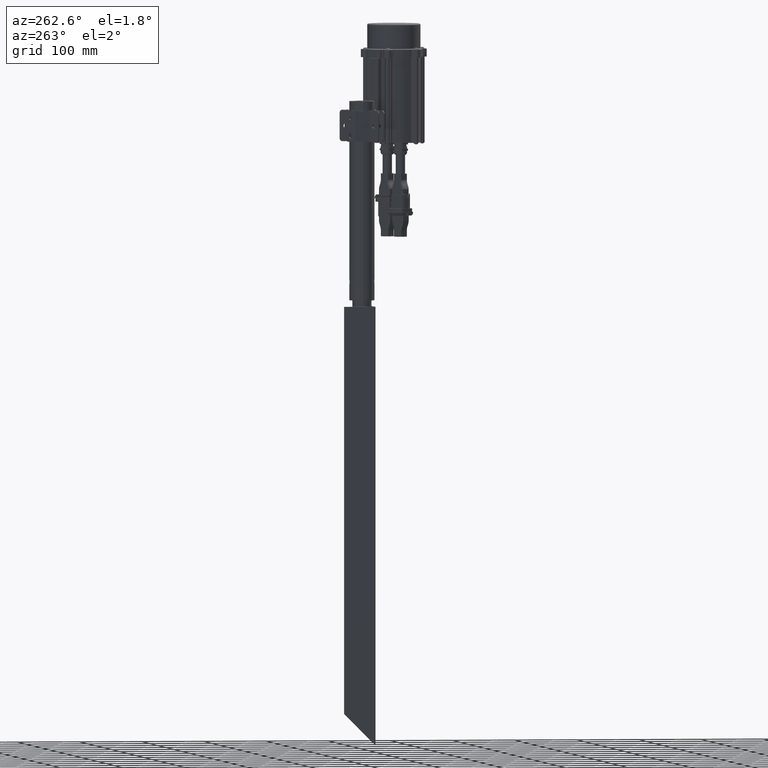
[diagram: clean part render]
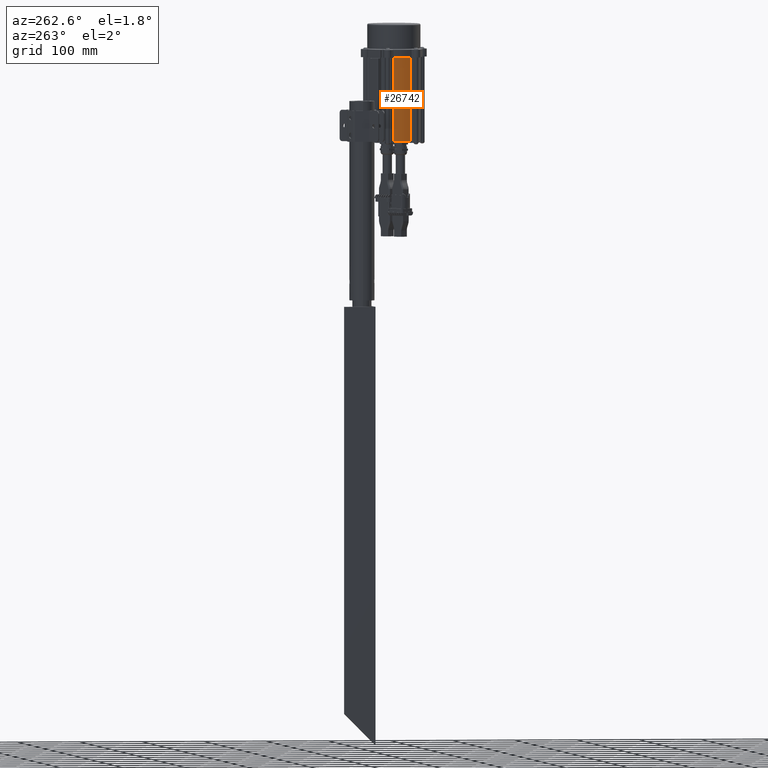
[diagram: same view with one face highlighted and labeled with its STEP entity id]
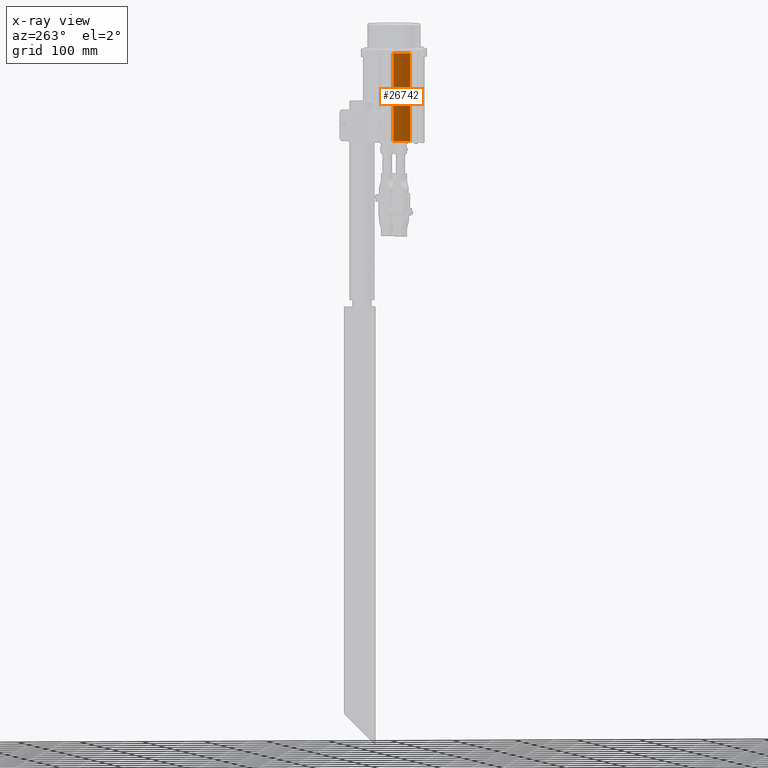
[diagram: x-ray of the same camera — body ghosted, the highlighted face saturated]
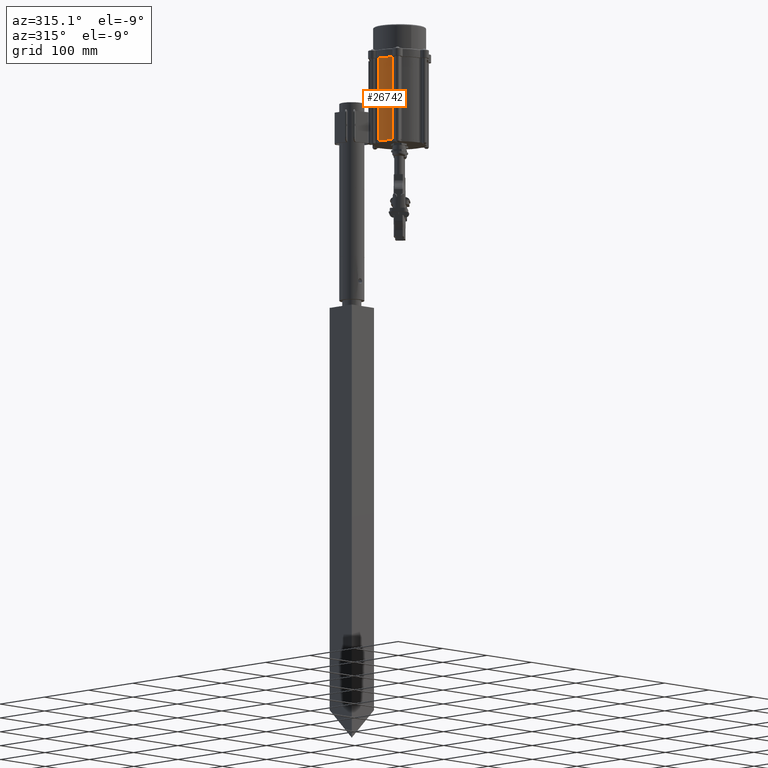
[diagram: same view with one face highlighted and labeled with its STEP entity id]
A machine part, auxiliary view. The second image highlights one B-rep face of the part: STEP entity #26742.
The next image is the same camera in x-ray: the body ghosted, the highlighted face saturated — about 0% of this face is hidden behind the body in this view.
A second angle (auxiliary view) of the same face is appended — the face is thin or edge-on in the first view.
In plain terms, the highlighted cylindrical surface (edge-blend (fillet) strip) has radius 42.5 mm, axis along (-0, -0, 1).
Its self-contained STEP definition (entity closure, byte-faithful):
#1553 = CARTESIAN_POINT ( 'NONE',  ( 32.13719859902123900, 27.81097744068878100, 140.0000000000000000 ) ) ;
#1718 = CARTESIAN_POINT ( 'NONE',  ( 8.016413668210157400, 41.73711911356080200, 140.0000000000000000 ) ) ;
#3993 = VERTEX_POINT ( 'NONE', #4217 ) ;
#4053 = VECTOR ( 'NONE', #32845, 1000.000000000000000 ) ;
#4217 = CARTESIAN_POINT ( 'NONE',  ( 32.13719859902123900, 27.81097744068878100, 0.0000000000000000000 ) ) ;
#4345 = CIRCLE ( 'NONE', #26482, 42.49999999999330700 ) ;
#4394 = ORIENTED_EDGE ( 'NONE', *, *, #25354, .T. ) ;
#7261 = AXIS2_PLACEMENT_3D ( 'NONE', #32026, #14418, #34994 ) ;
#7929 = EDGE_LOOP ( 'NONE', ( #33267, #35699, #26379, #4394 ) ) ;
#8696 = CARTESIAN_POINT ( 'NONE',  ( 32.13719859902123900, 27.81097744068878100, 140.0000000000000000 ) ) ;
#10473 = AXIS2_PLACEMENT_3D ( 'NONE', #37975, #14471, #17419 ) ;
#11866 = LINE ( 'NONE', #18060, #4053 ) ;
#12351 = EDGE_CURVE ( 'NONE', #3993, #22216, #4345, .T. ) ;
#12799 = EDGE_CURVE ( 'NONE', #24864, #28762, #37417, .T. ) ;
#14418 = DIRECTION ( 'NONE',  ( -0.0000000000000000000, 0.0000000000000000000, 1.000000000000000000 ) ) ;
#14471 = DIRECTION ( 'NONE',  ( -0.0000000000000000000, -0.0000000000000000000, -1.000000000000000000 ) ) ;
#15358 = CARTESIAN_POINT ( 'NONE',  ( 0.0000000000000000000, 0.0000000000000000000, 0.0000000000000000000 ) ) ;
#15684 = CYLINDRICAL_SURFACE ( 'NONE', #10473, 42.49999999999330700 ) ;
#17419 = DIRECTION ( 'NONE',  ( -1.000000000000000000, 0.0000000000000000000, 0.0000000000000000000 ) ) ;
#18060 = CARTESIAN_POINT ( 'NONE',  ( 8.016413668210157400, 41.73711911356080200, 140.0000000000000000 ) ) ;
#18296 = DIRECTION ( 'NONE',  ( 1.000000000000000000, 0.0000000000000000000, 0.0000000000000000000 ) ) ;
#22142 = DIRECTION ( 'NONE',  ( -0.0000000000000000000, -0.0000000000000000000, -1.000000000000000000 ) ) ;
#22216 = VERTEX_POINT ( 'NONE', #26975 ) ;
#24864 = VERTEX_POINT ( 'NONE', #8696 ) ;
#24915 = VECTOR ( 'NONE', #22142, 1000.000000000000000 ) ;
#25354 = EDGE_CURVE ( 'NONE', #24864, #3993, #31814, .T. ) ;
#26379 = ORIENTED_EDGE ( 'NONE', *, *, #12799, .F. ) ;
#26482 = AXIS2_PLACEMENT_3D ( 'NONE', #15358, #35910, #18296 ) ;
#26742 = ADVANCED_FACE ( 'NONE', ( #31302 ), #15684, .T. ) ;
#26975 = CARTESIAN_POINT ( 'NONE',  ( 8.016413668210157400, 41.73711911356080200, 0.0000000000000000000 ) ) ;
#28510 = EDGE_CURVE ( 'NONE', #28762, #22216, #11866, .T. ) ;
#28762 = VERTEX_POINT ( 'NONE', #1718 ) ;
#31302 = FACE_OUTER_BOUND ( 'NONE', #7929, .T. ) ;
#31814 = LINE ( 'NONE', #1553, #24915 ) ;
#32026 = CARTESIAN_POINT ( 'NONE',  ( 0.0000000000000000000, 0.0000000000000000000, 140.0000000000000000 ) ) ;
#32845 = DIRECTION ( 'NONE',  ( -0.0000000000000000000, -0.0000000000000000000, -1.000000000000000000 ) ) ;
#33267 = ORIENTED_EDGE ( 'NONE', *, *, #12351, .T. ) ;
#34994 = DIRECTION ( 'NONE',  ( 1.000000000000000000, 0.0000000000000000000, 0.0000000000000000000 ) ) ;
#35699 = ORIENTED_EDGE ( 'NONE', *, *, #28510, .F. ) ;
#35910 = DIRECTION ( 'NONE',  ( -0.0000000000000000000, 0.0000000000000000000, 1.000000000000000000 ) ) ;
#37417 = CIRCLE ( 'NONE', #7261, 42.49999999999330700 ) ;
#37975 = CARTESIAN_POINT ( 'NONE',  ( 0.0000000000000000000, 0.0000000000000000000, 140.0000000000000000 ) ) ;